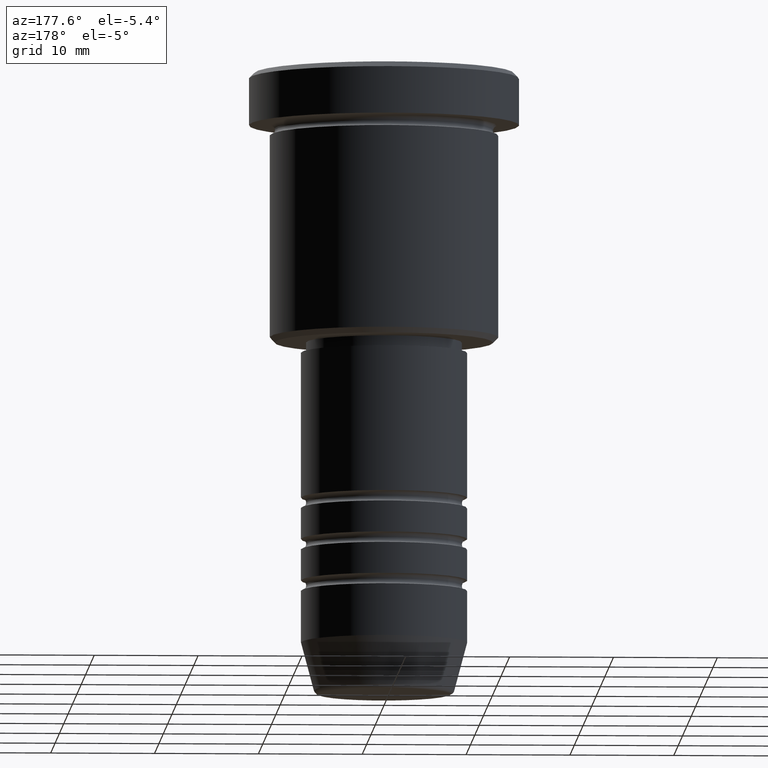
[diagram: clean part render]
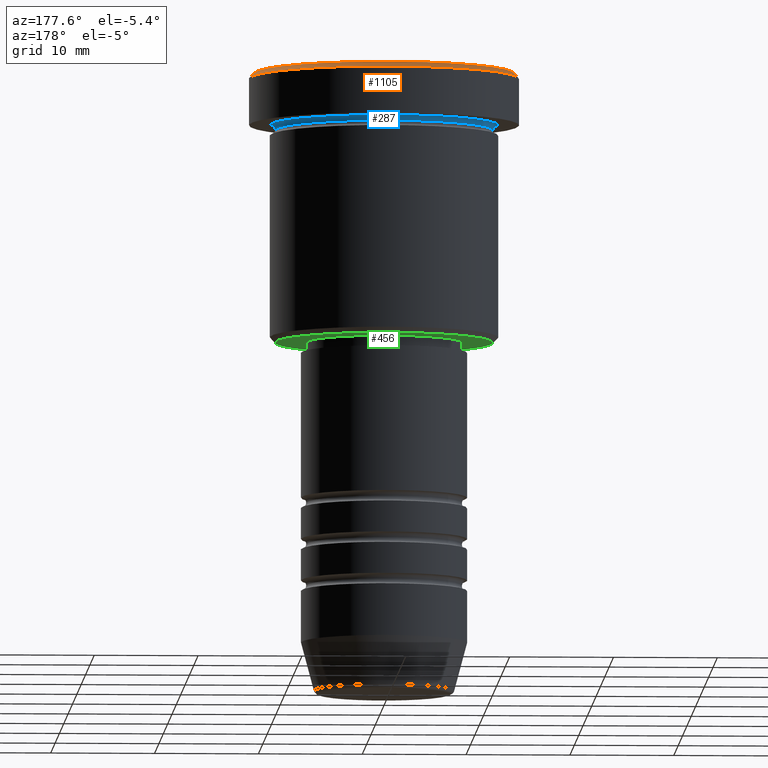
[diagram: same view with three faces highlighted in distinct colors, each labeled with its STEP entity id]
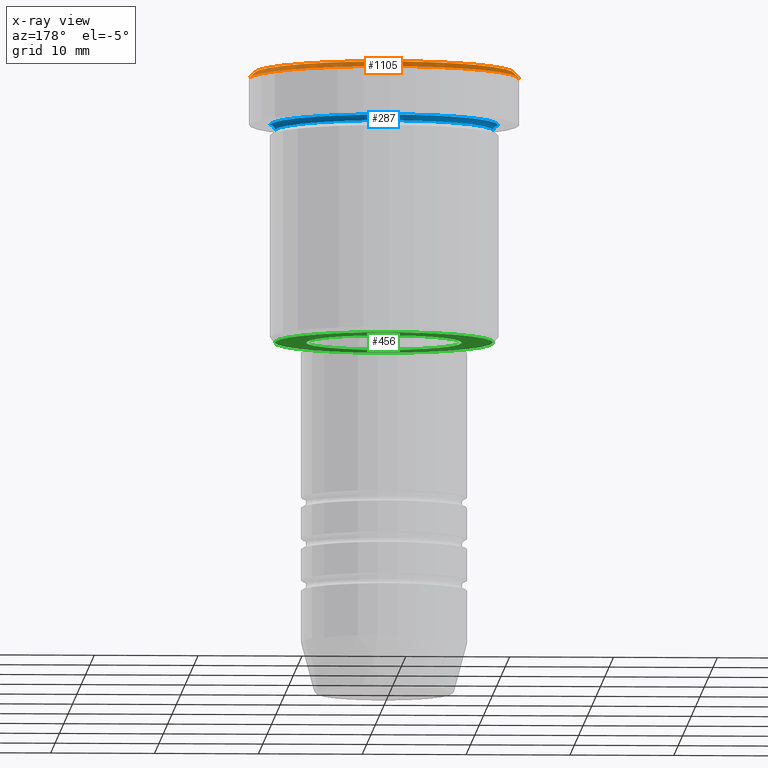
[diagram: x-ray of the same camera — body ghosted, the three highlighted faces saturated]
A machine part, auxiliary view with three faces highlighted in distinct colors.
The next image is the same camera in x-ray (body ghosted, the three faces saturated) — at least one of them is partly hidden behind the body in this view.
Their STEP definitions:

[orange] entity #1105 — the highlighted conical surface has half-angle 45 deg.
#21 = EDGE_LOOP ( 'NONE', ( #1002, #622, #624, #470 ) ) ;
#57 = VERTEX_POINT ( 'NONE', #466 ) ;
#65 = CARTESIAN_POINT ( 'NONE',  ( -12.50000000000001776, 0.000000000000000000, 0.000000000000000000 ) ) ;
#67 = AXIS2_PLACEMENT_3D ( 'NONE', #593, #138, #779 ) ;
#113 = CARTESIAN_POINT ( 'NONE',  ( -12.50000000000001776, 0.000000000000000000, 0.000000000000000000 ) ) ;
#132 = EDGE_CURVE ( 'NONE', #57, #149, #404, .T. ) ;
#138 = DIRECTION ( 'NONE',  ( 0.000000000000000000, 0.000000000000000000, -1.000000000000000000 ) ) ;
#149 = VERTEX_POINT ( 'NONE', #65 ) ;
#212 = CARTESIAN_POINT ( 'NONE',  ( -13.00000000000000000, 1.592040838891559095E-15, -0.4999999999999865663 ) ) ;
#230 = AXIS2_PLACEMENT_3D ( 'NONE', #416, #782, #882 ) ;
#232 = CARTESIAN_POINT ( 'NONE',  ( 13.00000000000000000, 0.000000000000000000, -0.4999999999999865663 ) ) ;
#272 = VECTOR ( 'NONE', #1041, 999.9999999999998863 ) ;
#327 = VECTOR ( 'NONE', #1136, 999.9999999999998863 ) ;
#403 = LINE ( 'NONE', #771, #327 ) ;
#404 = CIRCLE ( 'NONE', #230, 12.50000000000001776 ) ;
#416 = CARTESIAN_POINT ( 'NONE',  ( 0.000000000000000000, 0.000000000000000000, 0.000000000000000000 ) ) ;
#430 = EDGE_CURVE ( 'NONE', #149, #956, #1120, .T. ) ;
#462 = CIRCLE ( 'NONE', #617, 13.00000000000000000 ) ;
#466 = CARTESIAN_POINT ( 'NONE',  ( 12.50000000000001776, 1.561424668912876492E-15, 0.000000000000000000 ) ) ;
#470 = ORIENTED_EDGE ( 'NONE', *, *, #430, .F. ) ;
#473 = EDGE_CURVE ( 'NONE', #956, #1076, #462, .T. ) ;
#481 = DIRECTION ( 'NONE',  ( 1.000000000000000000, 0.000000000000000000, 0.000000000000000000 ) ) ;
#525 = EDGE_CURVE ( 'NONE', #57, #1076, #403, .T. ) ;
#593 = CARTESIAN_POINT ( 'NONE',  ( 0.000000000000000000, 0.000000000000000000, 0.000000000000000000 ) ) ;
#617 = AXIS2_PLACEMENT_3D ( 'NONE', #767, #1127, #481 ) ;
#622 = ORIENTED_EDGE ( 'NONE', *, *, #525, .T. ) ;
#624 = ORIENTED_EDGE ( 'NONE', *, *, #473, .F. ) ;
#659 = CONICAL_SURFACE ( 'NONE', #67, 12.50000000000001776, 0.7853981633974430610 ) ;
#767 = CARTESIAN_POINT ( 'NONE',  ( 0.000000000000000000, 0.000000000000000000, -0.4999999999999865663 ) ) ;
#771 = CARTESIAN_POINT ( 'NONE',  ( 12.50000000000001776, 1.530808498934193691E-15, 0.000000000000000000 ) ) ;
#779 = DIRECTION ( 'NONE',  ( -1.000000000000000000, 0.000000000000000000, 0.000000000000000000 ) ) ;
#782 = DIRECTION ( 'NONE',  ( -0.000000000000000000, -0.000000000000000000, 1.000000000000000000 ) ) ;
#784 = FACE_OUTER_BOUND ( 'NONE', #21, .T. ) ;
#882 = DIRECTION ( 'NONE',  ( 1.000000000000000000, 0.000000000000000000, 0.000000000000000000 ) ) ;
#956 = VERTEX_POINT ( 'NONE', #212 ) ;
#1002 = ORIENTED_EDGE ( 'NONE', *, *, #132, .F. ) ;
#1041 = DIRECTION ( 'NONE',  ( -0.7071067811865439090, 0.000000000000000000, -0.7071067811865512365 ) ) ;
#1076 = VERTEX_POINT ( 'NONE', #232 ) ;
#1105 = ADVANCED_FACE ( 'NONE', ( #784 ), #659, .T. ) ;
#1120 = LINE ( 'NONE', #113, #272 ) ;
#1127 = DIRECTION ( 'NONE',  ( 0.000000000000000000, 0.000000000000000000, -1.000000000000000000 ) ) ;
#1136 = DIRECTION ( 'NONE',  ( 0.7071067811865439090, 8.659560562354888485E-17, -0.7071067811865512365 ) ) ;

[blue] entity #287 — the highlighted toroidal blend (fillet) surface has major radius 11 mm and minor (blend) radius 0.5 mm.
#16 = CARTESIAN_POINT ( 'NONE',  ( -11.00000000000000000, 0.000000000000000000, -4.999999999999999112 ) ) ;
#25 = AXIS2_PLACEMENT_3D ( 'NONE', #921, #283, #301 ) ;
#50 = AXIS2_PLACEMENT_3D ( 'NONE', #147, #881, #1074 ) ;
#66 = AXIS2_PLACEMENT_3D ( 'NONE', #361, #168, #1019 ) ;
#72 = EDGE_CURVE ( 'NONE', #745, #112, #362, .T. ) ;
#112 = VERTEX_POINT ( 'NONE', #16 ) ;
#147 = CARTESIAN_POINT ( 'NONE',  ( -11.00000000000000000, 0.000000000000000000, -5.500000000000000000 ) ) ;
#160 = VERTEX_POINT ( 'NONE', #1146 ) ;
#168 = DIRECTION ( 'NONE',  ( -0.000000000000000000, -0.000000000000000000, 1.000000000000000000 ) ) ;
#176 = TOROIDAL_SURFACE ( 'NONE', #497, 11.00000000000000000, 0.5000000000000000000 ) ;
#255 = CIRCLE ( 'NONE', #50, 0.5000000000000004441 ) ;
#283 = DIRECTION ( 'NONE',  ( -0.000000000000000000, -0.000000000000000000, 1.000000000000000000 ) ) ;
#287 = ADVANCED_FACE ( 'NONE', ( #454 ), #176, .F. ) ;
#301 = DIRECTION ( 'NONE',  ( -1.000000000000000000, 0.000000000000000000, 0.000000000000000000 ) ) ;
#354 = DIRECTION ( 'NONE',  ( -1.000000000000000000, 0.000000000000000000, 0.000000000000000000 ) ) ;
#361 = CARTESIAN_POINT ( 'NONE',  ( 0.000000000000000000, 0.000000000000000000, -5.500000000000000000 ) ) ;
#362 = CIRCLE ( 'NONE', #25, 11.00000000000000000 ) ;
#398 = VERTEX_POINT ( 'NONE', #537 ) ;
#409 = DIRECTION ( 'NONE',  ( -1.224646799147353207E-16, 1.000000000000000000, 0.000000000000000000 ) ) ;
#431 = EDGE_LOOP ( 'NONE', ( #455, #648, #801, #1067 ) ) ;
#454 = FACE_OUTER_BOUND ( 'NONE', #431, .T. ) ;
#455 = ORIENTED_EDGE ( 'NONE', *, *, #1032, .F. ) ;
#497 = AXIS2_PLACEMENT_3D ( 'NONE', #626, #823, #354 ) ;
#537 = CARTESIAN_POINT ( 'NONE',  ( -10.49999999999999822, 1.316495309083404420E-15, -5.500000000000000000 ) ) ;
#580 = CIRCLE ( 'NONE', #66, 10.49999999999999822 ) ;
#600 = CARTESIAN_POINT ( 'NONE',  ( 11.00000000000000000, 1.347111479062088405E-15, -5.500000000000000000 ) ) ;
#626 = CARTESIAN_POINT ( 'NONE',  ( 0.000000000000000000, 0.000000000000000000, -5.500000000000000000 ) ) ;
#648 = ORIENTED_EDGE ( 'NONE', *, *, #818, .T. ) ;
#672 = EDGE_CURVE ( 'NONE', #398, #112, #255, .T. ) ;
#742 = CARTESIAN_POINT ( 'NONE',  ( 11.00000000000000000, 1.347111479062088405E-15, -4.999999999999999112 ) ) ;
#745 = VERTEX_POINT ( 'NONE', #742 ) ;
#801 = ORIENTED_EDGE ( 'NONE', *, *, #672, .T. ) ;
#818 = EDGE_CURVE ( 'NONE', #160, #398, #580, .T. ) ;
#823 = DIRECTION ( 'NONE',  ( 0.000000000000000000, 0.000000000000000000, -1.000000000000000000 ) ) ;
#880 = DIRECTION ( 'NONE',  ( -1.000000000000000000, -1.224646799147353454E-16, 0.000000000000000000 ) ) ;
#881 = DIRECTION ( 'NONE',  ( -0.000000000000000000, -1.000000000000000000, -0.000000000000000000 ) ) ;
#921 = CARTESIAN_POINT ( 'NONE',  ( 0.000000000000000000, 0.000000000000000000, -5.000000000000000000 ) ) ;
#1019 = DIRECTION ( 'NONE',  ( 1.000000000000000000, 0.000000000000000000, 0.000000000000000000 ) ) ;
#1032 = EDGE_CURVE ( 'NONE', #160, #745, #1138, .T. ) ;
#1067 = ORIENTED_EDGE ( 'NONE', *, *, #72, .F. ) ;
#1074 = DIRECTION ( 'NONE',  ( 0.000000000000000000, 0.000000000000000000, -1.000000000000000000 ) ) ;
#1121 = AXIS2_PLACEMENT_3D ( 'NONE', #600, #409, #880 ) ;
#1138 = CIRCLE ( 'NONE', #1121, 0.5000000000000004441 ) ;
#1146 = CARTESIAN_POINT ( 'NONE',  ( 10.49999999999999822, 0.000000000000000000, -5.500000000000000000 ) ) ;

[green] entity #456 — the highlighted planar face has unit normal (0, 0, -1).
#15 = VERTEX_POINT ( 'NONE', #373 ) ;
#74 = DIRECTION ( 'NONE',  ( -0.000000000000000000, -0.000000000000000000, 1.000000000000000000 ) ) ;
#90 = DIRECTION ( 'NONE',  ( -1.000000000000000000, 0.000000000000000000, 0.000000000000000000 ) ) ;
#105 = AXIS2_PLACEMENT_3D ( 'NONE', #381, #553, #842 ) ;
#114 = EDGE_LOOP ( 'NONE', ( #370, #314 ) ) ;
#131 = FACE_OUTER_BOUND ( 'NONE', #423, .T. ) ;
#174 = DIRECTION ( 'NONE',  ( 1.000000000000000000, 0.000000000000000000, 0.000000000000000000 ) ) ;
#182 = CARTESIAN_POINT ( 'NONE',  ( 0.000000000000000000, 0.000000000000000000, -26.00000000000000355 ) ) ;
#259 = CARTESIAN_POINT ( 'NONE',  ( 7.500000000000000000, 0.000000000000000000, -26.00000000000000355 ) ) ;
#314 = ORIENTED_EDGE ( 'NONE', *, *, #776, .T. ) ;
#350 = CIRCLE ( 'NONE', #1030, 7.500000000000000000 ) ;
#370 = ORIENTED_EDGE ( 'NONE', *, *, #1122, .T. ) ;
#373 = CARTESIAN_POINT ( 'NONE',  ( -7.500000000000000000, 9.184850993605147944E-16, -26.00000000000000355 ) ) ;
#381 = CARTESIAN_POINT ( 'NONE',  ( 0.000000000000000000, 0.000000000000000000, -26.00000000000000355 ) ) ;
#382 = PLANE ( 'NONE',  #949 ) ;
#392 = VERTEX_POINT ( 'NONE', #259 ) ;
#410 = CIRCLE ( 'NONE', #105, 10.49999999999998934 ) ;
#423 = EDGE_LOOP ( 'NONE', ( #895, #1031 ) ) ;
#424 = DIRECTION ( 'NONE',  ( 1.000000000000000000, 0.000000000000000000, 0.000000000000000000 ) ) ;
#456 = ADVANCED_FACE ( 'NONE', ( #131, #576 ), #382, .T. ) ;
#498 = CIRCLE ( 'NONE', #598, 7.500000000000000000 ) ;
#527 = CARTESIAN_POINT ( 'NONE',  ( 0.000000000000000000, 0.000000000000000000, -26.00000000000000355 ) ) ;
#553 = DIRECTION ( 'NONE',  ( 0.000000000000000000, 0.000000000000000000, -1.000000000000000000 ) ) ;
#572 = CARTESIAN_POINT ( 'NONE',  ( 0.000000000000000000, 11.00000000000000000, -26.00000000000000355 ) ) ;
#576 = FACE_BOUND ( 'NONE', #114, .T. ) ;
#590 = DIRECTION ( 'NONE',  ( -1.000000000000000000, 0.000000000000000000, -0.000000000000000000 ) ) ;
#598 = AXIS2_PLACEMENT_3D ( 'NONE', #182, #74, #174 ) ;
#630 = DIRECTION ( 'NONE',  ( 0.000000000000000000, 0.000000000000000000, -1.000000000000000000 ) ) ;
#678 = AXIS2_PLACEMENT_3D ( 'NONE', #527, #630, #90 ) ;
#702 = DIRECTION ( 'NONE',  ( -0.000000000000000000, -0.000000000000000000, 1.000000000000000000 ) ) ;
#754 = EDGE_CURVE ( 'NONE', #1103, #791, #969, .T. ) ;
#762 = DIRECTION ( 'NONE',  ( 0.000000000000000000, 0.000000000000000000, -1.000000000000000000 ) ) ;
#776 = EDGE_CURVE ( 'NONE', #15, #392, #498, .T. ) ;
#791 = VERTEX_POINT ( 'NONE', #918 ) ;
#842 = DIRECTION ( 'NONE',  ( -1.000000000000000000, 0.000000000000000000, 0.000000000000000000 ) ) ;
#877 = CARTESIAN_POINT ( 'NONE',  ( 0.000000000000000000, 0.000000000000000000, -26.00000000000000355 ) ) ;
#895 = ORIENTED_EDGE ( 'NONE', *, *, #754, .T. ) ;
#918 = CARTESIAN_POINT ( 'NONE',  ( -10.49999999999998934, 1.316495309083403829E-15, -26.00000000000000355 ) ) ;
#949 = AXIS2_PLACEMENT_3D ( 'NONE', #572, #762, #590 ) ;
#963 = EDGE_CURVE ( 'NONE', #791, #1103, #410, .T. ) ;
#969 = CIRCLE ( 'NONE', #678, 10.49999999999998934 ) ;
#1030 = AXIS2_PLACEMENT_3D ( 'NONE', #877, #702, #424 ) ;
#1031 = ORIENTED_EDGE ( 'NONE', *, *, #963, .T. ) ;
#1103 = VERTEX_POINT ( 'NONE', #1140 ) ;
#1122 = EDGE_CURVE ( 'NONE', #392, #15, #350, .T. ) ;
#1140 = CARTESIAN_POINT ( 'NONE',  ( 10.49999999999998934, 0.000000000000000000, -26.00000000000000355 ) ) ;